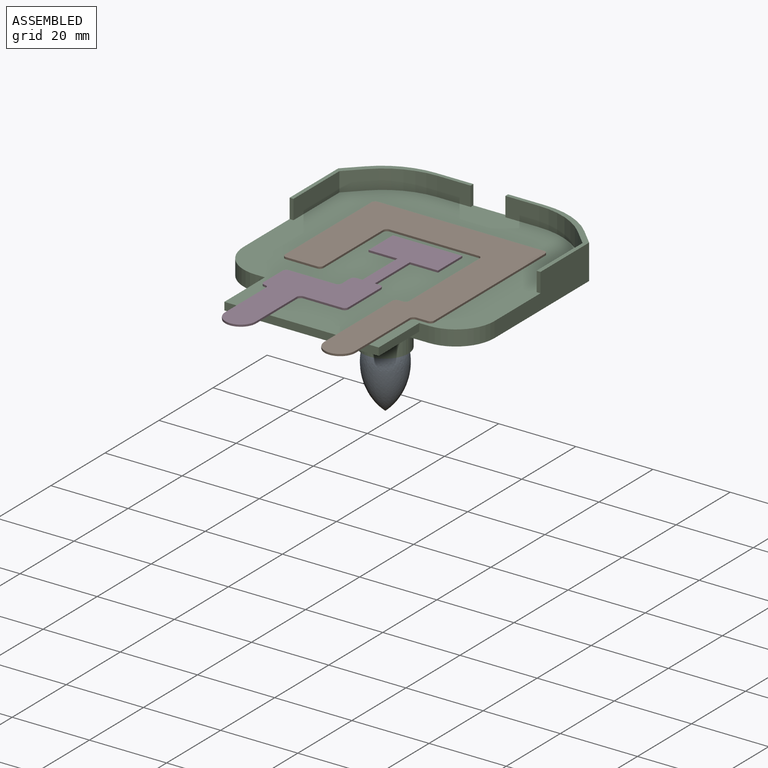
[diagram: assembled view]
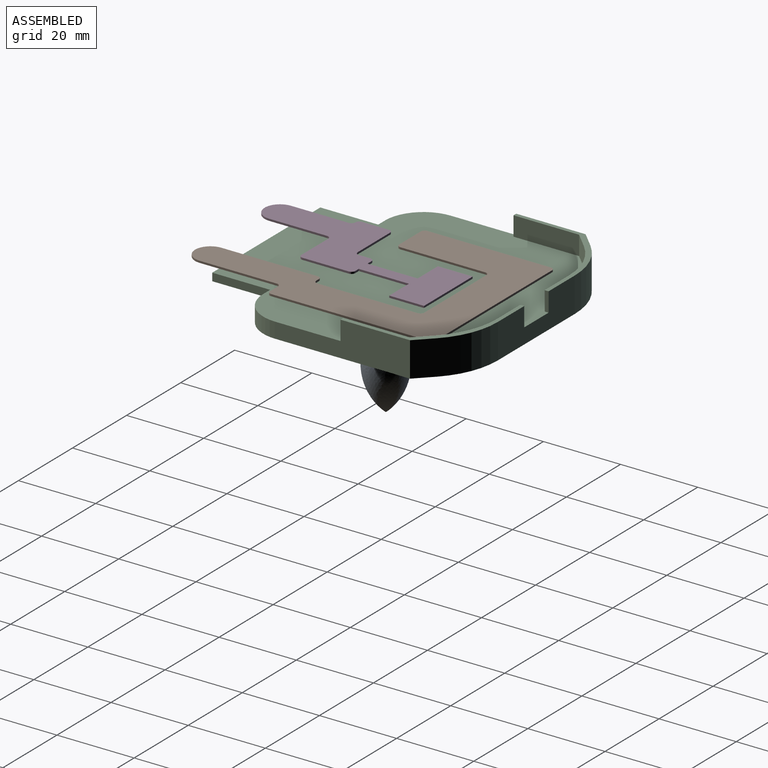
[diagram: assembled view, second angle]
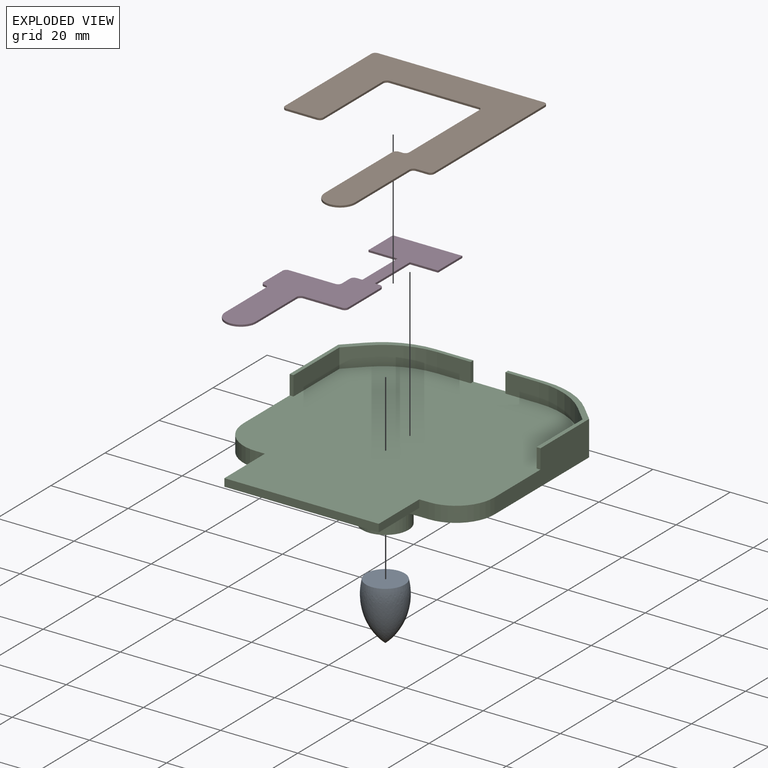
[diagram: exploded view]
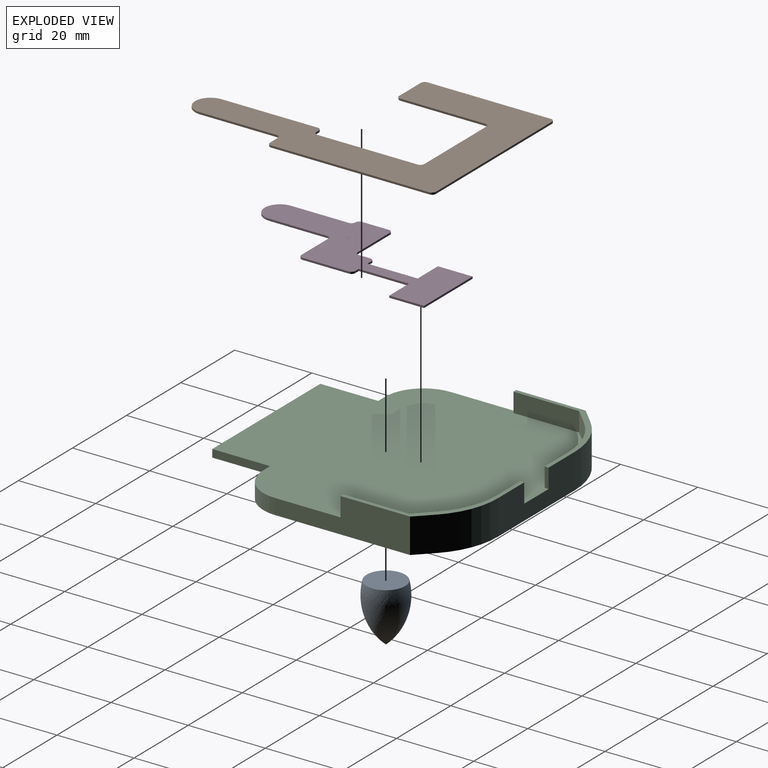
[diagram: exploded view, second angle]
ASSEMBLY  parts=4 mates=3
PART A: 2 faces, bbox 10.8x10.8x15 mm
  f0: plane 10x10mm, normal (0,0,1), area 78.5mm2, adj f1
  f1: revolved ~15x10.81mm, area 409.9mm2, adj f0
PART B: 24 faces, bbox 45x68x0.5 mm
  f0: cylinder r=1mm len=1mm, axis (0,0,-1), area 0.8mm2, adj f1,f21,f22,f23
  f1: plane 3x0.5mm, normal (0,-1,0), area 1.5mm2, adj f0,f2,f22,f23
  f2: cylinder r=1mm len=1mm, axis (0,0,-1), area 0.8mm2, adj f1,f3,f22,f23
  f3: plane 41x0.5mm, normal (1,0,0), area 20.5mm2, adj f2,f4,f22,f23
  f4: cylinder r=1mm len=1mm, axis (0,0,-1), area 0.8mm2, adj f3,f5,f22,f23
  f5: plane 43x0.5mm, normal (0,1,0), area 21.5mm2, adj f4,f6,f22,f23
  f6: cylinder r=1mm len=1mm, axis (0,0,-1), area 0.8mm2, adj f5,f7,f22,f23
  f7: plane 32x0.5mm, normal (-1,0,0), area 16mm2, adj f6,f8,f22,f23
  f8: cylinder r=1mm len=1mm, axis (0,0,-1), area 0.8mm2, adj f7,f9,f22,f23
  f9: plane 8x0.5mm, normal (0,-1,0), area 4mm2, adj f8,f10,f22,f23
  f10: cylinder r=1mm len=1mm, axis (0,0,-1), area 0.8mm2, adj f9,f11,f22,f23
  f11: plane 22x0.5mm, normal (1,0,0), area 11mm2, adj f10,f12,f22,f23
  f12: cylinder r=1mm len=1mm, axis (0,0,-1), area 0.8mm2, adj f11,f13,f22,f23
  f13: plane 23x0.5mm, normal (0,-1,0), area 11.5mm2, adj f12,f14,f22,f23
  f14: cylinder r=1mm len=1mm, axis (0,0,-1), area 0.8mm2, adj f13,f15,f22,f23
  f15: plane 26x0.5mm, normal (-1,0,0), area 13mm2, adj f14,f16,f22,f23
  f16: cylinder r=1mm len=1mm, axis (0,0,-1), area 0.8mm2, adj f15,f17,f22,f23
  f17: plane 1x0.5mm, normal (0,1,0), area 0.5mm2, adj f16,f18,f22,f23
  f18: cylinder r=1mm len=1mm, axis (0,0,-1), area 0.8mm2, adj f17,f19,f22,f23
  f19: plane 25x0.5mm, normal (-1,0,0), area 12.5mm2, adj f18,f20,f22,f23
  f20: cylinder r=4mm len=8mm, axis (0,0,-1), area 6.3mm2, adj f19,f21,f22,f23
  f21: plane 20x0.5mm, normal (1,0,0), area 10mm2, adj f0,f20,f22,f23
  f22: plane 68x45mm, normal (0,0,1), area 1227.7mm2, adj f0,f1,f2,f3,f4,f5,f6,f7
  f23: plane 68x45mm, normal (0,0,-1), area 1227.7mm2, adj f0,f1,f2,f3,f4,f5,f6,f7
PART C: 43 faces, bbox 65x70x22 mm
  f0: plane 70x65mm, normal (0,0,1), area 3904.9mm2, adj f1,f14,f17,f18,f19,f20,f23,f24
  f1: plane 45x4mm, normal (0,-1,0), area 100mm2, adj f0,f18,f19,f22,f23,f24,f26
  f2: plane 63x53mm, normal (0,0,-1), area 3065.8mm2, adj f3,f4,f5,f6,f7,f8,f9,f10
  f3: plane 26.43x2mm, normal (0,-1,0), area 52.9mm2, adj f2,f9,f12,f22
  f4: plane 4.14x4.14mm, normal (0.71,-0.71,0), area 11.7mm2, adj f2,f5,f12,f22
  f5: plane 33x2mm, normal (1,0,0), area 66mm2, adj f2,f4,f11,f22
  f6: plane 43x2mm, normal (0,1,0), area 86mm2, adj f2,f10,f11,f22
  f7: plane 33x2mm, normal (-1,0,0), area 66mm2, adj f2,f8,f10,f22
  f8: plane 4.14x4.14mm, normal (-0.71,-0.71,0), area 11.7mm2, adj f2,f7,f9,f22
  f9: cylinder r=20mm len=14.14mm, axis (0,0,1), area 31.4mm2, adj f2,f3,f8,f22
  f10: cylinder r=10mm len=10mm, axis (0,0,1), area 31.4mm2, adj f2,f6,f7,f22
  f11: cylinder r=10mm len=10mm, axis (0,0,1), area 31.4mm2, adj f2,f5,f6,f22
  f12: cylinder r=20mm len=14.14mm, axis (0,0,1), area 31.4mm2, adj f2,f3,f4,f22
  f13: cylinder r=20mm len=14.14mm, axis (0,0,1), area 141.4mm2, adj f14,f21,f22,f42
  f14: plane 28.43x9mm, normal (0,1,0), area 210.9mm2, adj f0,f13,f15,f22,f29,f35,f36,f42
  f15: cylinder r=20mm len=14.14mm, axis (0,0,1), area 141.4mm2, adj f14,f16,f22,f35
  f16: plane 9x4.14mm, normal (-0.71,0.71,0), area 52.7mm2, adj f15,f17,f22,f35
  f17: plane 35x9mm, normal (-1,0,0), area 230mm2, adj f0,f16,f18,f22,f30,f35
  f18: cylinder r=10mm len=10mm, axis (0,0,1), area 62.8mm2, adj f0,f1,f17,f22
  f19: cylinder r=10mm len=10mm, axis (0,0,1), area 62.8mm2, adj f0,f1,f20,f22
  f20: plane 35x9mm, normal (1,0,0), area 230mm2, adj f0,f19,f21,f22,f41,f42
  f21: plane 9x4.14mm, normal (0.71,0.71,0), area 52.7mm2, adj f13,f20,f22,f42
  f22: plane 65x55mm, normal (0,0,-1), area 236mm2, adj f1,f3,f4,f5,f6,f7,f8,f9
  f23: plane 15x2mm, normal (1,0,0), area 30mm2, adj f0,f1,f25,f26
  f24: plane 15x2mm, normal (-1,0,0), area 30mm2, adj f0,f1,f25,f26
  f25: plane 40x2mm, normal (0,-1,0), area 80mm2, adj f0,f23,f24,f26
  f26: plane 40x15mm, normal (0,0,-1), area 600mm2, adj f1,f23,f24,f25
  f27: cylinder r=6mm len=15mm, axis (0,0,1), area 565.5mm2, adj f2,f28
  f28: plane 12x12mm, normal (0,0,-1), area 113.1mm2, adj f27
  f29: plane 5x1mm, normal (1,0,0), area 5mm2, adj f0,f14,f34,f35
  f30: plane 5x1mm, normal (0,-1,0), area 5mm2, adj f0,f17,f31,f35
  f31: plane 17x5mm, normal (1,0,0), area 85mm2, adj f0,f30,f32,f35
  f32: plane 5x4.14mm, normal (0.71,-0.71,0), area 29.3mm2, adj f0,f31,f33,f35
  f33: cylinder r=20mm len=14.14mm, axis (0,0,-1), area 78.5mm2, adj f0,f32,f34,f35
  f34: plane 8.72x5mm, normal (0,-1,0), area 43.6mm2, adj f0,f29,f33,f35
  f35: plane 28x28mm, normal (0,0,1), area 55mm2, adj f14,f15,f16,f17,f29,f30,f31,f32
  f36: plane 5x1mm, normal (-1,0,0), area 5mm2, adj f0,f14,f37,f42
  f37: plane 8.72x5mm, normal (0,-1,0), area 43.6mm2, adj f0,f36,f38,f42
  f38: cylinder r=20mm len=14.14mm, axis (0,0,-1), area 78.5mm2, adj f0,f37,f39,f42
  f39: plane 5x4.14mm, normal (-0.71,-0.71,0), area 29.3mm2, adj f0,f38,f40,f42
  f40: plane 17x5mm, normal (-1,0,0), area 85mm2, adj f0,f39,f41,f42
  f41: plane 5x1mm, normal (0,-1,0), area 5mm2, adj f0,f20,f40,f42
  f42: plane 28x28mm, normal (0,0,1), area 55mm2, adj f13,f14,f20,f21,f36,f37,f38,f39
PART D: 27 faces, bbox 27x56x0.5 mm
  f0: plane 12x0.5mm, normal (1,0,0), area 6mm2, adj f1,f24,f25,f26
  f1: cylinder r=1mm len=1mm, axis (0,0,-1), area 0.8mm2, adj f0,f2,f25,f26
  f2: plane 1.27x0.5mm, normal (0,1,0), area 0.6mm2, adj f1,f3,f25,f26
  f3: plane 13x0.5mm, normal (1,0,0), area 6.5mm2, adj f2,f4,f25,f26
  f4: plane 7.27x0.5mm, normal (0,-1,0), area 3.6mm2, adj f3,f5,f25,f26
  f5: plane 9x0.5mm, normal (1,0,0), area 4.5mm2, adj f4,f6,f25,f26
  f6: plane 18x0.5mm, normal (0,1,0), area 9mm2, adj f5,f7,f25,f26
  f7: plane 9x0.5mm, normal (-1,0,0), area 4.5mm2, adj f6,f8,f25,f26
  f8: plane 7.5x0.5mm, normal (0,-1,0), area 3.8mm2, adj f7,f9,f25,f26
  f9: plane 13x0.5mm, normal (-1,0,0), area 6.5mm2, adj f8,f10,f25,f26
  f10: plane 1.5x0.5mm, normal (0,1,0), area 0.8mm2, adj f9,f11,f25,f26
  f11: cylinder r=1mm len=1mm, axis (0,0,-1), area 0.8mm2, adj f10,f12,f25,f26
  f12: plane 3x0.5mm, normal (-1,0,0), area 1.5mm2, adj f11,f13,f25,f26
  f13: cylinder r=1mm len=1mm, axis (0,0,-1), area 0.8mm2, adj f12,f14,f25,f26
  f14: plane 12x0.5mm, normal (0,1,0), area 6mm2, adj f13,f15,f25,f26
  f15: cylinder r=1mm len=1mm, axis (0,0,-1), area 0.8mm2, adj f14,f16,f25,f26
  f16: plane 7x0.5mm, normal (-1,0,0), area 3.5mm2, adj f15,f17,f25,f26
  f17: cylinder r=1mm len=1mm, axis (0,0,-1), area 0.8mm2, adj f16,f18,f25,f26
  f18: cylinder r=1mm len=1mm, axis (0,0,-1), area 0.8mm2, adj f17,f19,f25,f26
  f19: plane 15x0.5mm, normal (-1,0,0), area 7.5mm2, adj f18,f20,f25,f26
  f20: cylinder r=4mm len=8mm, axis (0,0,-1), area 6.3mm2, adj f19,f21,f25,f26
  f21: plane 15x0.5mm, normal (1,0,0), area 7.5mm2, adj f20,f22,f25,f26
  f22: cylinder r=1mm len=1mm, axis (0,0,-1), area 0.8mm2, adj f21,f23,f25,f26
  f23: plane 10x0.5mm, normal (0,-1,0), area 5mm2, adj f22,f24,f25,f26
  f24: cylinder r=1mm len=1mm, axis (0,0,-1), area 0.8mm2, adj f0,f23,f25,f26
  f25: plane 56x27mm, normal (0,0,1), area 594.6mm2, adj f0,f1,f2,f3,f4,f5,f6,f7
  f26: plane 56x27mm, normal (0,0,-1), area 594.6mm2, adj f0,f1,f2,f3,f4,f5,f6,f7
PLACE A t=(145.51,-95.41,-1.88)mm
PLACE B t=(145.51,-95.41,-1.88)mm
PLACE C t=(145.51,-95.41,-1.88)mm
PLACE D t=(145.26,-95.41,-1.88)mm
MATE fastened C.f0 <-> B.f23  axis (0,0,1) through (167.01,-78.91,-1.88)mm
MATE fastened C.f0 <-> D.f26  axis (0,0,1) through (128.26,-117.91,-1.88)mm
MATE fastened C.f27 <-> A.f0  axis (0,0,-1) through (145.51,-106.91,-18.88)mm
